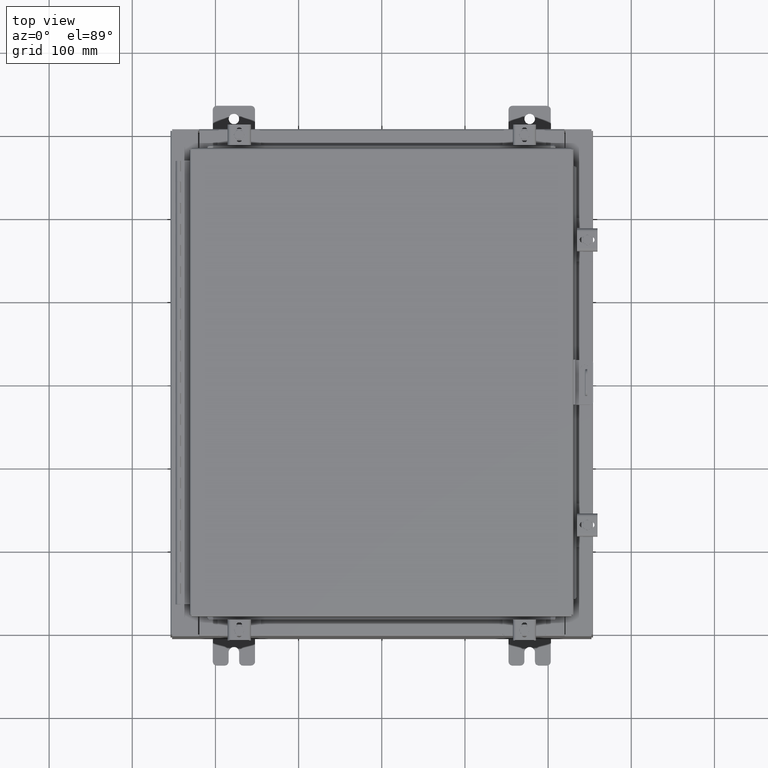
[diagram: clean part render]
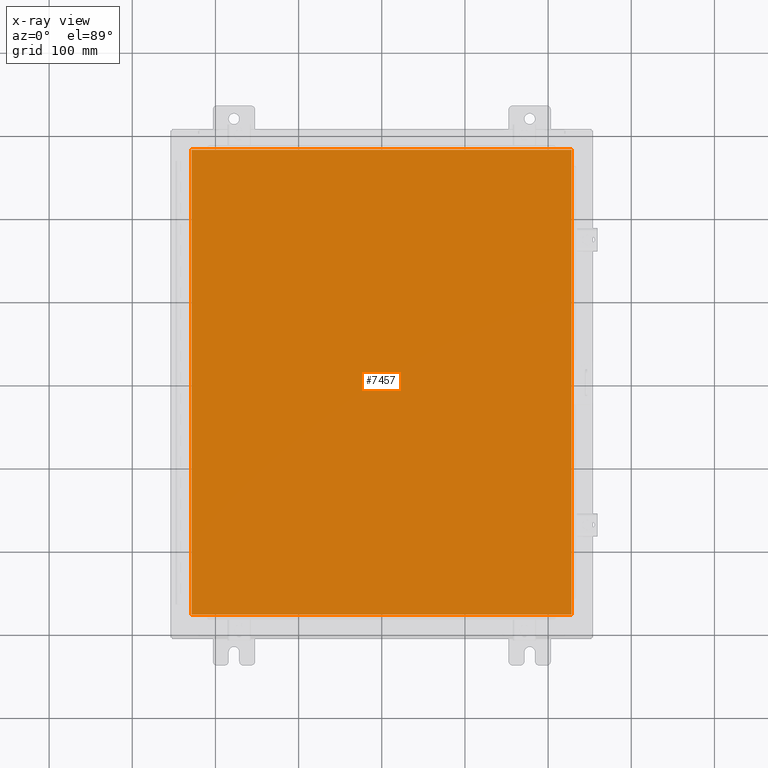
[diagram: x-ray — body ghosted, one internal face saturated and labeled with its STEP entity id]
A machine part, top view, then the same camera in x-ray: the body is ghosted and one INTERNAL B-rep face — a face not visible from any outside direction — is saturated and labeled: STEP entity #7457.
In plain terms, the highlighted planar face has unit normal (0, 0, -1).
Its self-contained STEP definition (entity closure, byte-faithful):
#700 = EDGE_CURVE ( 'NONE', #26216, #8945, #24154, .T. ) ;
#1963 = EDGE_CURVE ( 'NONE', #8297, #13851, #2555, .T. ) ;
#2555 = LINE ( 'NONE', #22828, #21017 ) ;
#2858 = DIRECTION ( 'NONE',  ( 1.000000000000000000, -0.0000000000000000000, -0.0000000000000000000 ) ) ;
#3373 = EDGE_CURVE ( 'NONE', #8945, #8297, #30706, .T. ) ;
#3576 = LINE ( 'NONE', #19362, #29453 ) ;
#4014 = EDGE_CURVE ( 'NONE', #13851, #26216, #3576, .T. ) ;
#4205 = DIRECTION ( 'NONE',  ( 0.0000000000000000000, 0.0000000000000000000, -1.000000000000000000 ) ) ;
#4475 = EDGE_LOOP ( 'NONE', ( #13854, #27889, #4707, #19933 ) ) ;
#4707 = ORIENTED_EDGE ( 'NONE', *, *, #3373, .F. ) ;
#7457 = ADVANCED_FACE ( 'NONE', ( #15765 ), #19280, .T. ) ;
#8297 = VERTEX_POINT ( 'NONE', #30878 ) ;
#8945 = VERTEX_POINT ( 'NONE', #26237 ) ;
#11604 = CARTESIAN_POINT ( 'NONE',  ( 8.990299999999997700, 11.00630000000000000, -0.07470000000000000300 ) ) ;
#13851 = VERTEX_POINT ( 'NONE', #28493 ) ;
#13854 = ORIENTED_EDGE ( 'NONE', *, *, #4014, .F. ) ;
#15765 = FACE_OUTER_BOUND ( 'NONE', #4475, .T. ) ;
#18274 = VECTOR ( 'NONE', #21203, 39.37007874015748100 ) ;
#19280 = PLANE ( 'NONE',  #31322 ) ;
#19362 = CARTESIAN_POINT ( 'NONE',  ( 8.990299999999997700, -11.00630000000000000, -0.07470000000000019700 ) ) ;
#19933 = ORIENTED_EDGE ( 'NONE', *, *, #700, .F. ) ;
#21017 = VECTOR ( 'NONE', #2858, 39.37007874015748100 ) ;
#21037 = CARTESIAN_POINT ( 'NONE',  ( 8.990299999999999500, 11.00630000000000000, -0.07470000000000019700 ) ) ;
#21203 = DIRECTION ( 'NONE',  ( -1.000000000000000000, -0.0000000000000000000, -0.0000000000000000000 ) ) ;
#21804 = DIRECTION ( 'NONE',  ( -1.000000000000000000, 0.0000000000000000000, -0.0000000000000000000 ) ) ;
#22828 = CARTESIAN_POINT ( 'NONE',  ( -8.990300000000001300, -11.00630000000000100, -0.07469999999999910000 ) ) ;
#23881 = CARTESIAN_POINT ( 'NONE',  ( -8.990299999999999500, 11.00630000000000100, -0.07470000000000019700 ) ) ;
#24154 = LINE ( 'NONE', #21037, #18274 ) ;
#26216 = VERTEX_POINT ( 'NONE', #11604 ) ;
#26237 = CARTESIAN_POINT ( 'NONE',  ( -8.990299999999999500, 11.00630000000000000, -0.07470000000000000300 ) ) ;
#27889 = ORIENTED_EDGE ( 'NONE', *, *, #1963, .F. ) ;
#28493 = CARTESIAN_POINT ( 'NONE',  ( 8.990299999999997700, -11.00630000000000000, -0.07470000000000000300 ) ) ;
#29111 = CARTESIAN_POINT ( 'NONE',  ( 0.0000000000000000000, 0.0000000000000000000, -0.07470000000000000300 ) ) ;
#29116 = VECTOR ( 'NONE', #31413, 39.37007874015748100 ) ;
#29453 = VECTOR ( 'NONE', #31915, 39.37007874015748100 ) ;
#30706 = LINE ( 'NONE', #23881, #29116 ) ;
#30878 = CARTESIAN_POINT ( 'NONE',  ( -8.990299999999997700, -11.00630000000000100, -0.07470000000000000300 ) ) ;
#31322 = AXIS2_PLACEMENT_3D ( 'NONE', #29111, #4205, #21804 ) ;
#31413 = DIRECTION ( 'NONE',  ( 0.0000000000000000000, -1.000000000000000000, 0.0000000000000000000 ) ) ;
#31915 = DIRECTION ( 'NONE',  ( 0.0000000000000000000, 1.000000000000000000, 0.0000000000000000000 ) ) ;